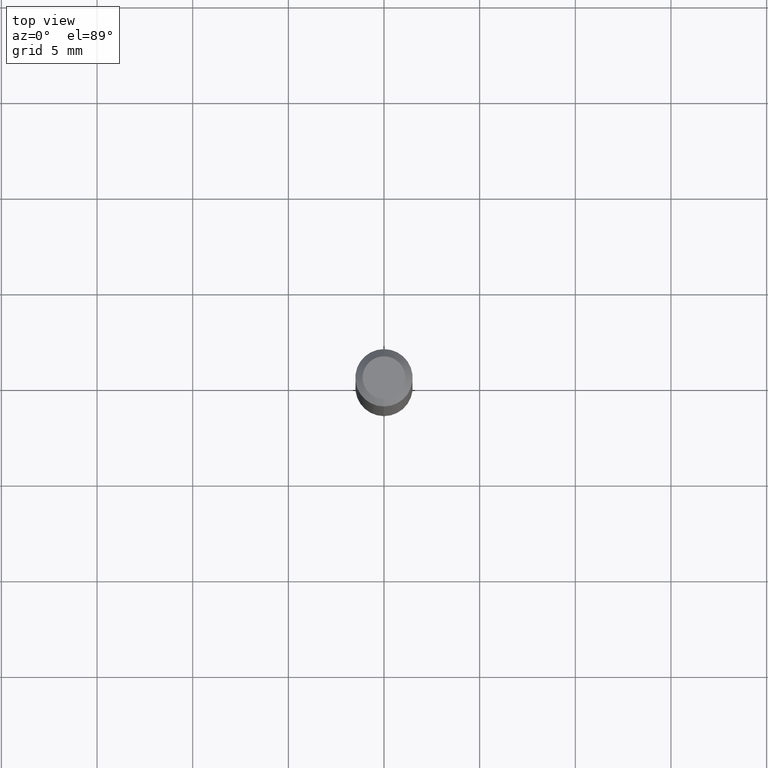
[diagram: clean part render]
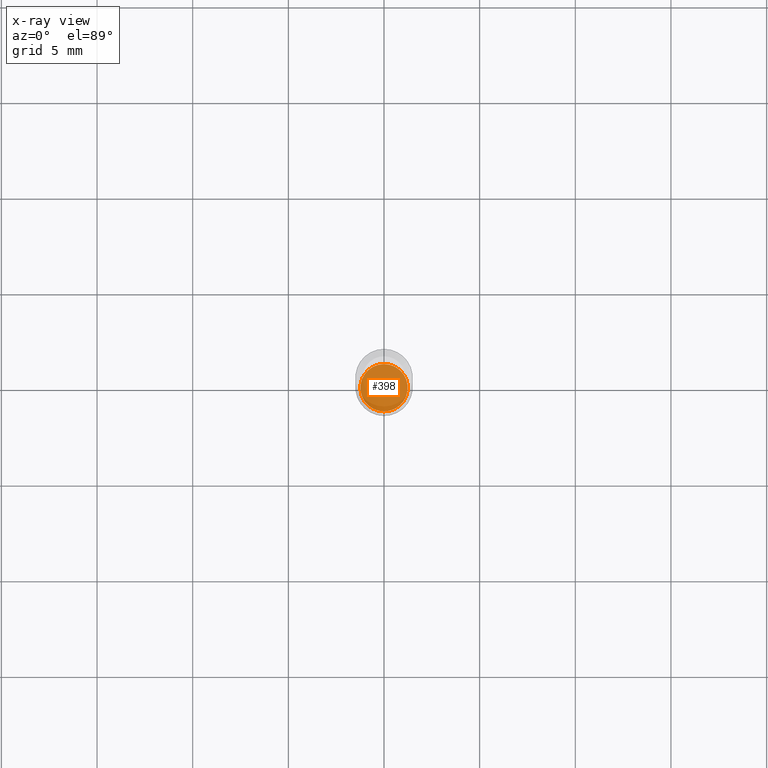
[diagram: x-ray — body ghosted, one internal face saturated and labeled with its STEP entity id]
A machine part, top view, then the same camera in x-ray: the body is ghosted and one INTERNAL B-rep face — a face not visible from any outside direction — is saturated and labeled: STEP entity #398.
In plain terms, the highlighted planar face has unit normal (-0, 0, 1).
Its self-contained STEP definition (entity closure, byte-faithful):
#6 = ORIENTED_EDGE ( 'NONE', *, *, #311, .F. ) ;
#7 = DIRECTION ( 'NONE',  ( -2.445524756156847675E-29, 3.491401215299180303E-15, 1.000000000000000000 ) ) ;
#54 = EDGE_LOOP ( 'NONE', ( #6, #433 ) ) ;
#58 = CARTESIAN_POINT ( 'NONE',  ( 2.936586127193142595E-29, -4.192474579331255818E-15, -1.200799999999999867 ) ) ;
#163 = DIRECTION ( 'NONE',  ( -6.982962677686265922E-15, -1.000000000000000000, 3.491401215299180303E-15 ) ) ;
#173 = CARTESIAN_POINT ( 'NONE',  ( 2.936586127193142595E-29, -4.192474579331255818E-15, -1.200799999999999867 ) ) ;
#191 = DIRECTION ( 'NONE',  ( -6.982962677686266711E-15, -1.000000000000000000, 2.804772067417108113E-15 ) ) ;
#238 = AXIS2_PLACEMENT_3D ( 'NONE', #173, #326, #490 ) ;
#261 = VERTEX_POINT ( 'NONE', #342 ) ;
#266 = CARTESIAN_POINT ( 'NONE',  ( 2.936586127193142595E-29, -4.192474579331255818E-15, -1.200799999999999867 ) ) ;
#279 = CARTESIAN_POINT ( 'NONE',  ( -3.400702824032917868E-16, -0.04870000000000419133, -1.200799999999999867 ) ) ;
#284 = CIRCLE ( 'NONE', #375, 0.04870000000000000023 ) ;
#311 = EDGE_CURVE ( 'NONE', #383, #261, #284, .T. ) ;
#312 = AXIS2_PLACEMENT_3D ( 'NONE', #58, #7, #163 ) ;
#326 = DIRECTION ( 'NONE',  ( -2.445524756156847955E-29, 3.491401215299180303E-15, 1.000000000000000000 ) ) ;
#342 = CARTESIAN_POINT ( 'NONE',  ( 3.478106691545985279E-16, 0.04869999999999580914, -1.200800000000000090 ) ) ;
#355 = PLANE ( 'NONE',  #312 ) ;
#375 = AXIS2_PLACEMENT_3D ( 'NONE', #266, #419, #191 ) ;
#383 = VERTEX_POINT ( 'NONE', #279 ) ;
#397 = FACE_OUTER_BOUND ( 'NONE', #54, .T. ) ;
#398 = ADVANCED_FACE ( 'NONE', ( #397 ), #355, .F. ) ;
#419 = DIRECTION ( 'NONE',  ( -2.445524756156847955E-29, 3.491401215299180303E-15, 1.000000000000000000 ) ) ;
#433 = ORIENTED_EDGE ( 'NONE', *, *, #468, .F. ) ;
#461 = CIRCLE ( 'NONE', #238, 0.04870000000000000023 ) ;
#468 = EDGE_CURVE ( 'NONE', #261, #383, #461, .T. ) ;
#490 = DIRECTION ( 'NONE',  ( -6.982962677686266711E-15, -1.000000000000000000, 2.804772067417108113E-15 ) ) ;